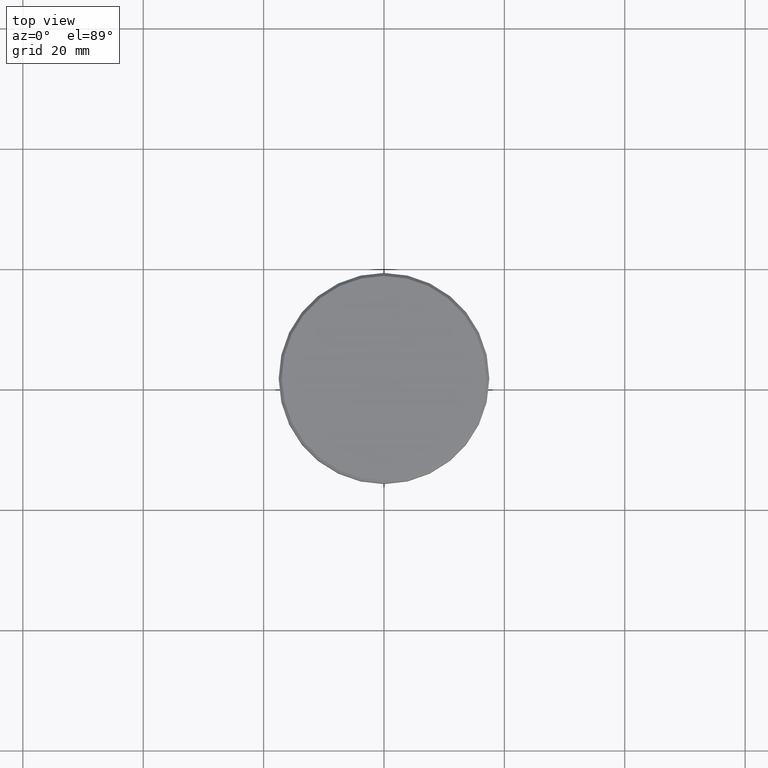
[diagram: clean part render]
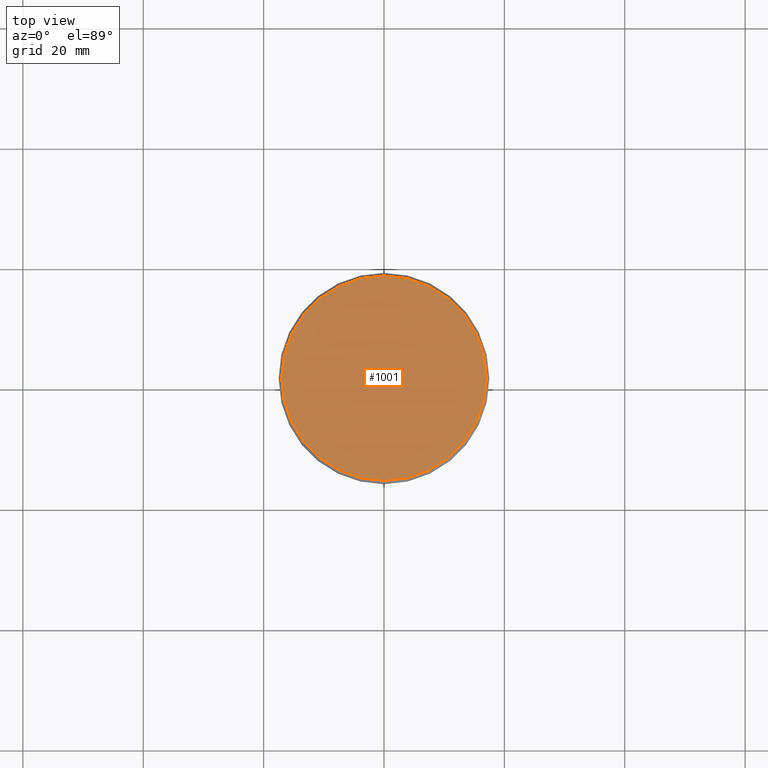
[diagram: same view with one face highlighted and labeled with its STEP entity id]
A machine part, top view. The second image highlights one B-rep face of the part: STEP entity #1001.
In plain terms, the highlighted planar face has unit normal (0, -0, 1).
Its self-contained STEP definition (entity closure, byte-faithful):
#29 = DIRECTION ( 'NONE',  ( -0.000000000000000000, -0.000000000000000000, 1.000000000000000000 ) ) ;
#146 = EDGE_CURVE ( 'NONE', #599, #164, #1102, .T. ) ;
#161 = AXIS2_PLACEMENT_3D ( 'NONE', #239, #982, #415 ) ;
#164 = VERTEX_POINT ( 'NONE', #292 ) ;
#228 = FACE_OUTER_BOUND ( 'NONE', #508, .T. ) ;
#239 = CARTESIAN_POINT ( 'NONE',  ( 0.000000000000000000, 0.000000000000000000, 0.000000000000000000 ) ) ;
#274 = DIRECTION ( 'NONE',  ( 1.000000000000000000, 0.000000000000000000, 0.000000000000000000 ) ) ;
#282 = AXIS2_PLACEMENT_3D ( 'NONE', #926, #29, #467 ) ;
#292 = CARTESIAN_POINT ( 'NONE',  ( -16.99999999999997513, 0.000000000000000000, 0.000000000000000000 ) ) ;
#396 = CARTESIAN_POINT ( 'NONE',  ( 0.000000000000000000, 0.000000000000000000, 0.000000000000000000 ) ) ;
#415 = DIRECTION ( 'NONE',  ( 1.000000000000000000, 0.000000000000000000, 0.000000000000000000 ) ) ;
#467 = DIRECTION ( 'NONE',  ( 1.000000000000000000, 0.000000000000000000, 0.000000000000000000 ) ) ;
#508 = EDGE_LOOP ( 'NONE', ( #1096, #1164 ) ) ;
#542 = CARTESIAN_POINT ( 'NONE',  ( 16.99999999999997513, 2.112515728529182883E-15, 0.000000000000000000 ) ) ;
#599 = VERTEX_POINT ( 'NONE', #542 ) ;
#752 = CIRCLE ( 'NONE', #812, 16.99999999999997513 ) ;
#812 = AXIS2_PLACEMENT_3D ( 'NONE', #396, #959, #274 ) ;
#926 = CARTESIAN_POINT ( 'NONE',  ( 0.000000000000000000, 0.000000000000000000, 0.000000000000000000 ) ) ;
#938 = EDGE_CURVE ( 'NONE', #164, #599, #752, .T. ) ;
#959 = DIRECTION ( 'NONE',  ( -0.000000000000000000, -0.000000000000000000, 1.000000000000000000 ) ) ;
#982 = DIRECTION ( 'NONE',  ( 0.000000000000000000, -0.000000000000000000, 1.000000000000000000 ) ) ;
#1001 = ADVANCED_FACE ( 'NONE', ( #228 ), #1168, .T. ) ;
#1096 = ORIENTED_EDGE ( 'NONE', *, *, #938, .T. ) ;
#1102 = CIRCLE ( 'NONE', #282, 16.99999999999997513 ) ;
#1164 = ORIENTED_EDGE ( 'NONE', *, *, #146, .T. ) ;
#1168 = PLANE ( 'NONE',  #161 ) ;